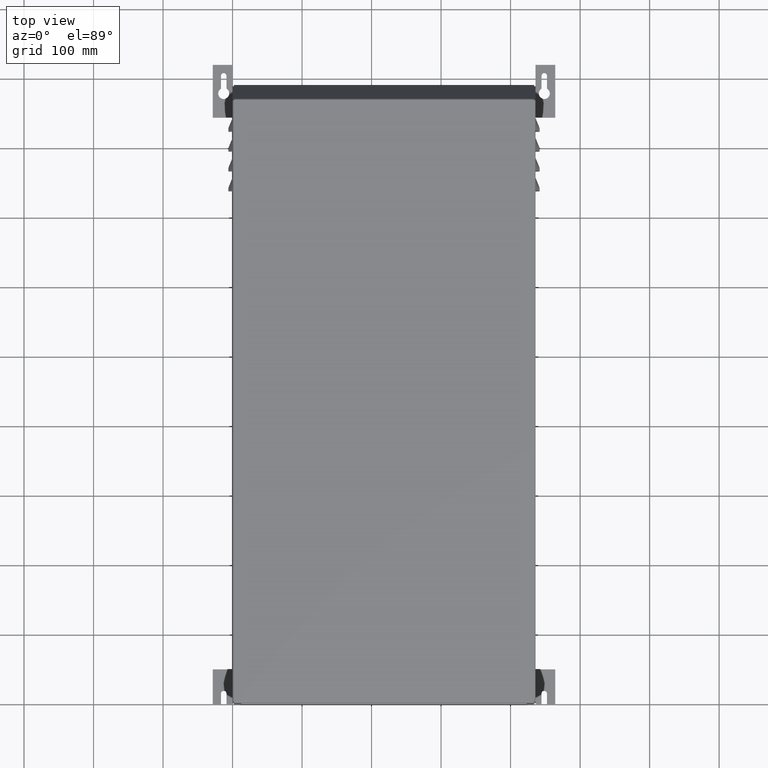
[diagram: clean part render]
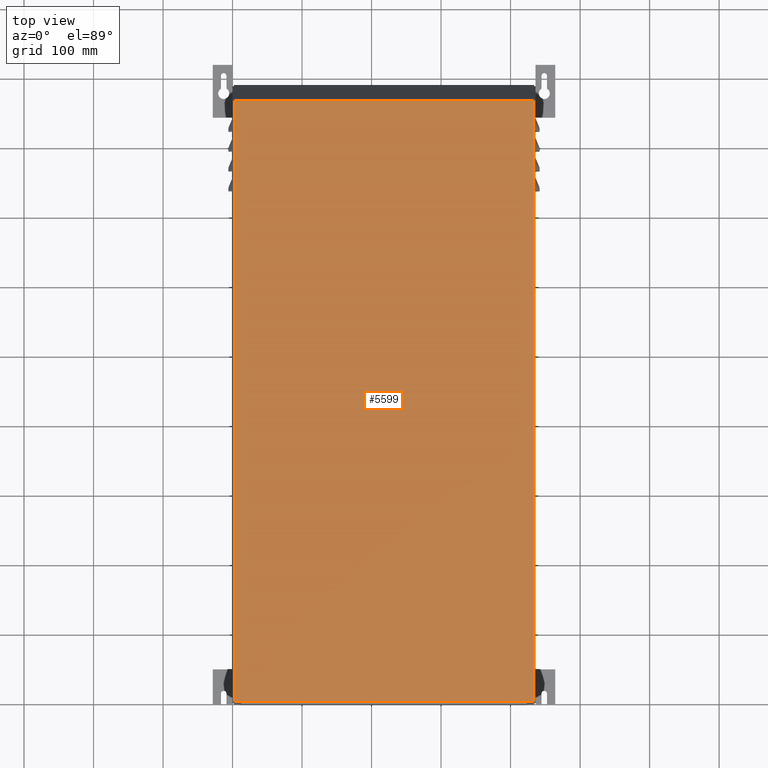
[diagram: same view with one face highlighted and labeled with its STEP entity id]
A machine part, top view. The second image highlights one B-rep face of the part: STEP entity #5599.
In plain terms, the highlighted planar face has unit normal (0, 0, 1).
Its self-contained STEP definition (entity closure, byte-faithful):
#307=PLANE('',#6159);
#612=FACE_OUTER_BOUND('',#943,.T.);
#943=EDGE_LOOP('',(#4869,#4870,#4871,#4872));
#1676=LINE('',#9448,#2134);
#1685=LINE('',#9761,#2143);
#1688=LINE('',#9820,#2146);
#1690=LINE('',#9824,#2148);
#2134=VECTOR('',#7672,34.0304347638186);
#2143=VECTOR('',#7691,34.0304347638186);
#2146=VECTOR('',#7698,16.94575);
#2148=VECTOR('',#7704,16.94575);
#2604=VERTEX_POINT('',#9432);
#2605=VERTEX_POINT('',#9440);
#2616=VERTEX_POINT('',#9752);
#2617=VERTEX_POINT('',#9760);
#3343=EDGE_CURVE('',#2604,#2605,#1676,.T.);
#3369=EDGE_CURVE('',#2617,#2616,#1685,.T.);
#3374=EDGE_CURVE('',#2616,#2604,#1688,.T.);
#3376=EDGE_CURVE('',#2605,#2617,#1690,.T.);
#4869=ORIENTED_EDGE('',*,*,#3374,.T.);
#4870=ORIENTED_EDGE('',*,*,#3343,.T.);
#4871=ORIENTED_EDGE('',*,*,#3376,.T.);
#4872=ORIENTED_EDGE('',*,*,#3369,.T.);
#5599=ADVANCED_FACE('',(#612),#307,.T.);
#6159=AXIS2_PLACEMENT_3D('',#9823,#7702,#7703);
#7672=DIRECTION('',(3.00418206183647E-16,-1.,0.));
#7691=DIRECTION('',(0.,1.,0.));
#7698=DIRECTION('',(-1.,0.,0.));
#7702=DIRECTION('center_axis',(0.,0.,1.));
#7703=DIRECTION('ref_axis',(1.,0.,0.));
#7704=DIRECTION('',(1.,0.,0.));
#9432=CARTESIAN_POINT('',(0.105249999999988,34.1356847638186,0.074));
#9440=CARTESIAN_POINT('',(0.105249999999998,0.105249999999998,0.074));
#9448=CARTESIAN_POINT('',(0.10524999999999,25.668,0.074));
#9752=CARTESIAN_POINT('',(17.051,34.1356847638186,0.074));
#9760=CARTESIAN_POINT('',(17.051,0.105249999999998,0.074));
#9761=CARTESIAN_POINT('',(17.051,8.608625,0.074));
#9820=CARTESIAN_POINT('',(12.8145625,34.1356847638186,0.074));
#9823=CARTESIAN_POINT('Origin',(8.57812499999999,17.112,0.074));
#9824=CARTESIAN_POINT('',(4.34168749999999,0.105249999999998,0.074));